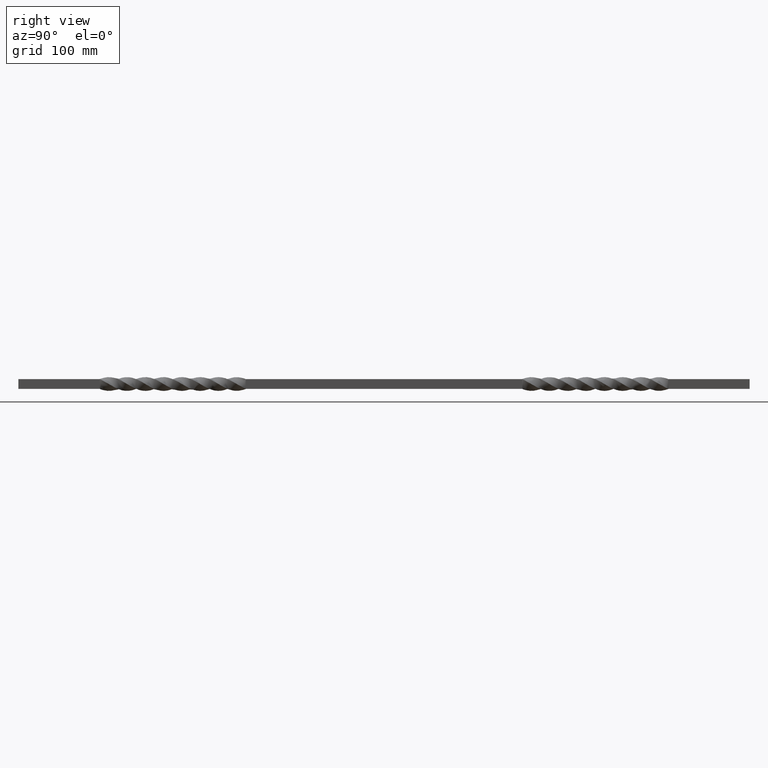
[diagram: clean part render]
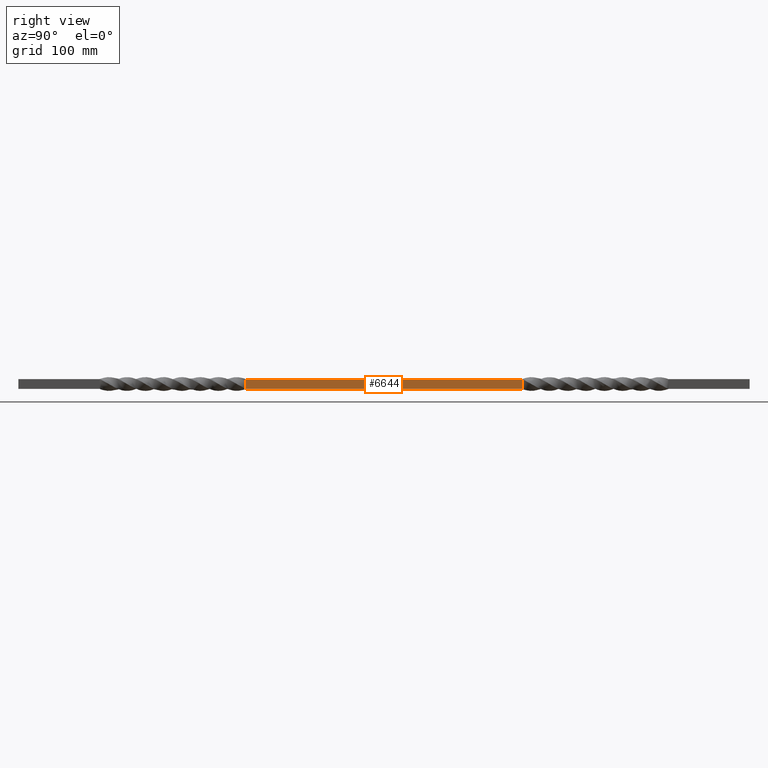
[diagram: same view with one face highlighted and labeled with its STEP entity id]
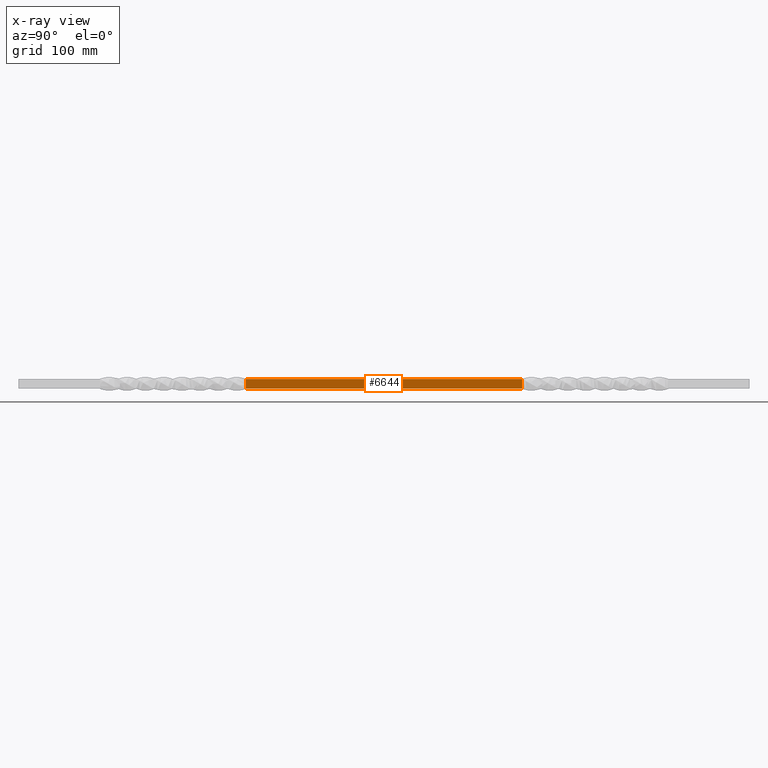
[diagram: x-ray of the same camera — body ghosted, the highlighted face saturated]
A machine part, right view. The second image highlights one B-rep face of the part: STEP entity #6644.
The next image is the same camera in x-ray: the body ghosted, the highlighted face saturated — about 0% of this face is hidden behind the body in this view.
In plain terms, the highlighted planar face has unit normal (-1, 0, -0).
Its self-contained STEP definition (entity closure, byte-faithful):
#572 = ORIENTED_EDGE ( 'NONE', *, *, #5576, .F. ) ;
#936 = VECTOR ( 'NONE', #2934, 1000.000000000000000 ) ;
#961 = CARTESIAN_POINT ( 'NONE',  ( 6.000000000000000000, 620.0000000000000000, 6.000000000000000000 ) ) ;
#963 = PLANE ( 'NONE',  #4363 ) ;
#1737 = CARTESIAN_POINT ( 'NONE',  ( 6.000000006995133361, 619.9999999611588919, -5.999999997126574058 ) ) ;
#1746 = LINE ( 'NONE', #6985, #3408 ) ;
#2125 = FACE_OUTER_BOUND ( 'NONE', #4604, .T. ) ;
#2267 = VECTOR ( 'NONE', #4760, 1000.000000000000000 ) ;
#2302 = CARTESIAN_POINT ( 'NONE',  ( 6.000000006995133361, 279.9999999863826474, -5.999999997126574058 ) ) ;
#2531 = DIRECTION ( 'NONE',  ( 5.829278033894496882E-10, 0.000000000000000000, -1.000000000000000000 ) ) ;
#2934 = DIRECTION ( 'NONE',  ( -0.000000000000000000, -1.000000000000000000, -0.000000000000000000 ) ) ;
#3286 = VECTOR ( 'NONE', #2531, 1000.000000000000000 ) ;
#3408 = VECTOR ( 'NONE', #8002, 1000.000000000000000 ) ;
#3446 = VERTEX_POINT ( 'NONE', #8123 ) ;
#4363 = AXIS2_PLACEMENT_3D ( 'NONE', #9993, #5121, #10140 ) ;
#4439 = ORIENTED_EDGE ( 'NONE', *, *, #5181, .F. ) ;
#4468 = ORIENTED_EDGE ( 'NONE', *, *, #9247, .T. ) ;
#4604 = EDGE_LOOP ( 'NONE', ( #4439, #572, #4468, #7291 ) ) ;
#4760 = DIRECTION ( 'NONE',  ( -0.000000000000000000, 0.000000000000000000, -1.000000000000000000 ) ) ;
#5121 = DIRECTION ( 'NONE',  ( -1.000000000000000000, 0.000000000000000000, -5.829278033894496882E-10 ) ) ;
#5181 = EDGE_CURVE ( 'NONE', #8693, #7684, #1746, .T. ) ;
#5576 = EDGE_CURVE ( 'NONE', #6961, #8693, #7735, .T. ) ;
#5845 = LINE ( 'NONE', #10624, #2267 ) ;
#6282 = CARTESIAN_POINT ( 'NONE',  ( 6.000000000000000000, 619.9999999999898819, 6.000000000000000000 ) ) ;
#6497 = EDGE_CURVE ( 'NONE', #3446, #7684, #5845, .T. ) ;
#6644 = ADVANCED_FACE ( 'NONE', ( #2125 ), #963, .F. ) ;
#6961 = VERTEX_POINT ( 'NONE', #6282 ) ;
#6985 = CARTESIAN_POINT ( 'NONE',  ( 6.000000006995133361, 800.0019999863817475, -5.999999997126574058 ) ) ;
#7074 = CARTESIAN_POINT ( 'NONE',  ( 6.000000000000000000, 800.0019999863817475, 6.000000000000000000 ) ) ;
#7291 = ORIENTED_EDGE ( 'NONE', *, *, #6497, .T. ) ;
#7684 = VERTEX_POINT ( 'NONE', #2302 ) ;
#7735 = LINE ( 'NONE', #961, #3286 ) ;
#8002 = DIRECTION ( 'NONE',  ( -0.000000000000000000, -1.000000000000000000, -0.000000000000000000 ) ) ;
#8123 = CARTESIAN_POINT ( 'NONE',  ( 6.000000000000000000, 280.0000000000000000, 6.000000000000000000 ) ) ;
#8609 = LINE ( 'NONE', #7074, #936 ) ;
#8693 = VERTEX_POINT ( 'NONE', #1737 ) ;
#9247 = EDGE_CURVE ( 'NONE', #6961, #3446, #8609, .T. ) ;
#9993 = CARTESIAN_POINT ( 'NONE',  ( 6.000000000000000000, 800.0019999863817475, 6.000000000000000000 ) ) ;
#10140 = DIRECTION ( 'NONE',  ( -5.829278033894496882E-10, 0.000000000000000000, 1.000000000000000000 ) ) ;
#10624 = CARTESIAN_POINT ( 'NONE',  ( 6.000000000000000000, 280.0000000000000000, 0.000000000000000000 ) ) ;